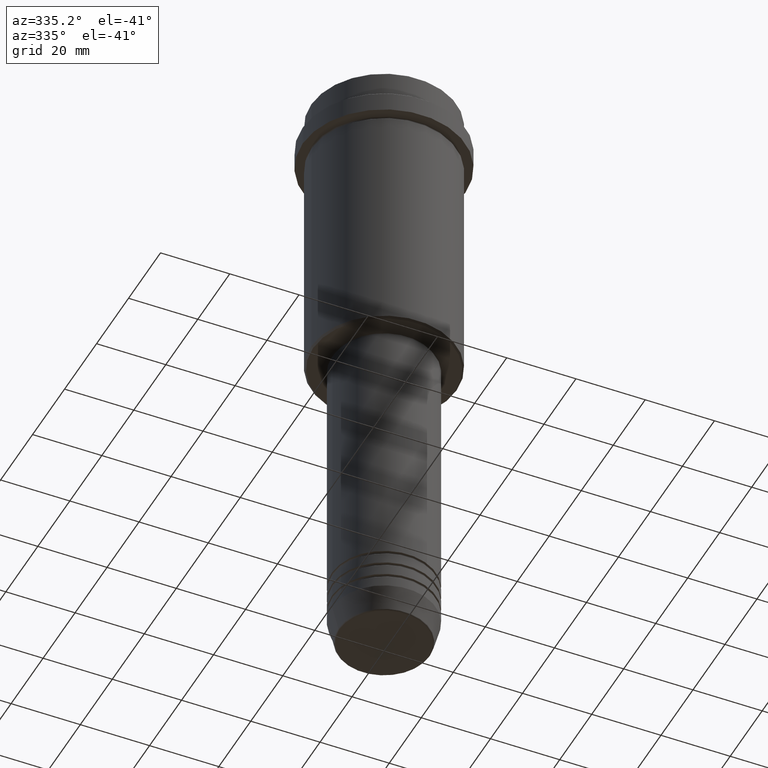
[diagram: clean part render]
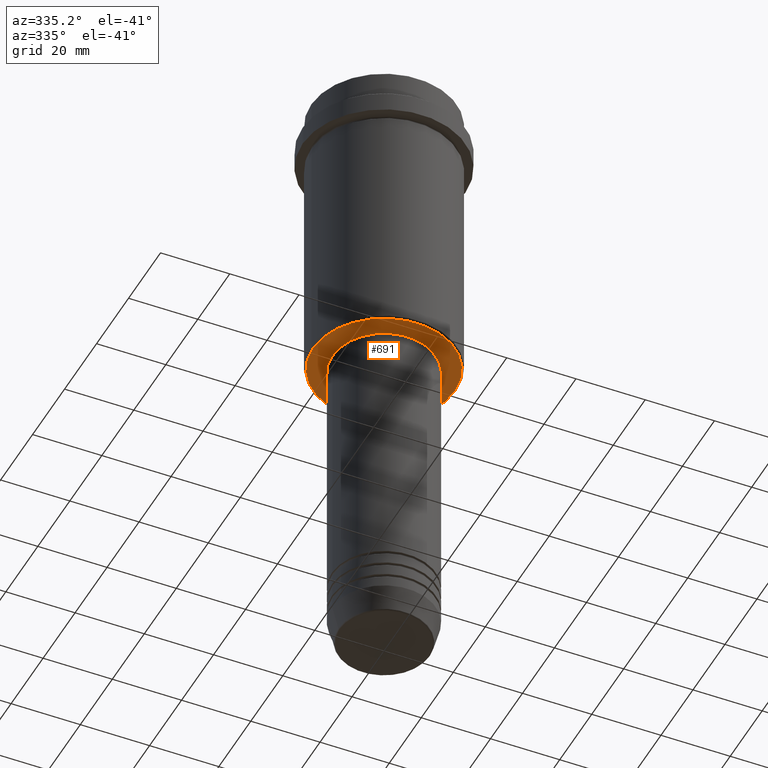
[diagram: same view with one face highlighted and labeled with its STEP entity id]
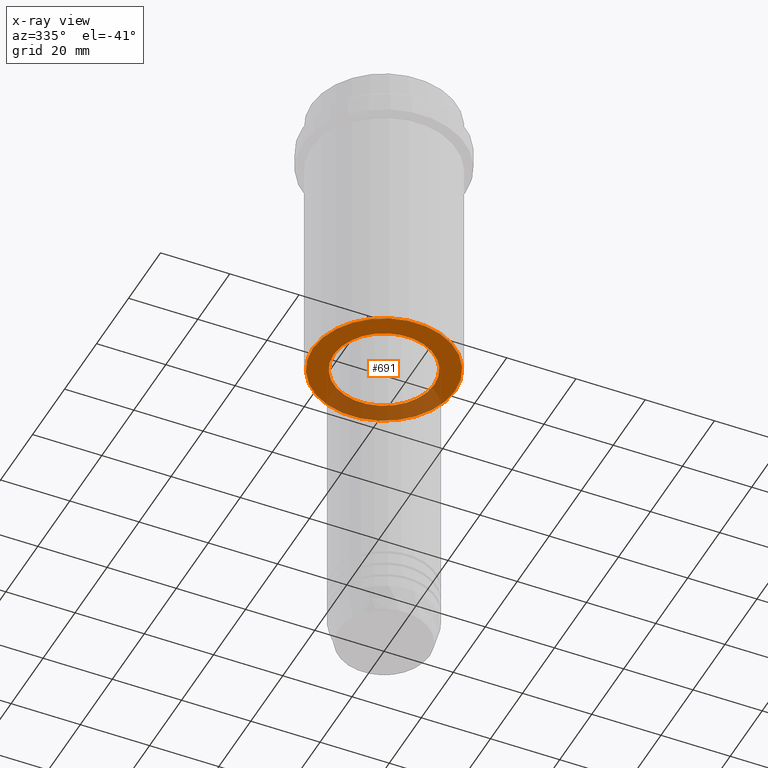
[diagram: x-ray of the same camera — body ghosted, the highlighted face saturated]
A machine part, auxiliary view. The second image highlights one B-rep face of the part: STEP entity #691.
The next image is the same camera in x-ray: the body ghosted, the highlighted face saturated — about 30% of this face is hidden behind the body in this view.
In plain terms, the highlighted planar face has unit normal (0, 0, -1).
Its self-contained STEP definition (entity closure, byte-faithful):
#34 = VERTEX_POINT ( 'NONE', #346 ) ;
#35 = CARTESIAN_POINT ( 'NONE',  ( 0.000000000000000000, 0.000000000000000000, -84.99999999999998579 ) ) ;
#66 = EDGE_CURVE ( 'NONE', #428, #1270, #344, .T. ) ;
#120 = DIRECTION ( 'NONE',  ( -1.000000000000000000, 0.000000000000000000, 0.000000000000000000 ) ) ;
#210 = DIRECTION ( 'NONE',  ( 1.000000000000000000, 0.000000000000000000, 0.000000000000000000 ) ) ;
#218 = CARTESIAN_POINT ( 'NONE',  ( 20.50000000000000355, 0.000000000000000000, -84.99999999999998579 ) ) ;
#230 = CARTESIAN_POINT ( 'NONE',  ( 0.000000000000000000, 21.00000000000000000, -84.99999999999998579 ) ) ;
#344 = CIRCLE ( 'NONE', #438, 20.50000000000000355 ) ;
#346 = CARTESIAN_POINT ( 'NONE',  ( -14.49999999999999467, 1.775737858763661620E-15, -84.99999999999998579 ) ) ;
#401 = CARTESIAN_POINT ( 'NONE',  ( -20.50000000000000355, 2.541142108230758269E-15, -84.99999999999998579 ) ) ;
#428 = VERTEX_POINT ( 'NONE', #218 ) ;
#438 = AXIS2_PLACEMENT_3D ( 'NONE', #600, #922, #1035 ) ;
#482 = VERTEX_POINT ( 'NONE', #1195 ) ;
#518 = CIRCLE ( 'NONE', #939, 14.49999999999999467 ) ;
#600 = CARTESIAN_POINT ( 'NONE',  ( 0.000000000000000000, 0.000000000000000000, -84.99999999999998579 ) ) ;
#603 = EDGE_CURVE ( 'NONE', #1270, #428, #1312, .T. ) ;
#650 = DIRECTION ( 'NONE',  ( -0.000000000000000000, -0.000000000000000000, 1.000000000000000000 ) ) ;
#657 = AXIS2_PLACEMENT_3D ( 'NONE', #1176, #991, #210 ) ;
#667 = EDGE_LOOP ( 'NONE', ( #1092, #1395 ) ) ;
#688 = DIRECTION ( 'NONE',  ( 0.000000000000000000, 0.000000000000000000, -1.000000000000000000 ) ) ;
#691 = ADVANCED_FACE ( 'NONE', ( #1341, #809 ), #1228, .T. ) ;
#729 = EDGE_LOOP ( 'NONE', ( #819, #815 ) ) ;
#809 = FACE_BOUND ( 'NONE', #667, .T. ) ;
#815 = ORIENTED_EDGE ( 'NONE', *, *, #603, .T. ) ;
#817 = AXIS2_PLACEMENT_3D ( 'NONE', #230, #1346, #1009 ) ;
#819 = ORIENTED_EDGE ( 'NONE', *, *, #66, .T. ) ;
#874 = EDGE_CURVE ( 'NONE', #482, #34, #518, .T. ) ;
#922 = DIRECTION ( 'NONE',  ( 0.000000000000000000, 0.000000000000000000, -1.000000000000000000 ) ) ;
#939 = AXIS2_PLACEMENT_3D ( 'NONE', #986, #650, #1089 ) ;
#965 = EDGE_CURVE ( 'NONE', #34, #482, #1106, .T. ) ;
#986 = CARTESIAN_POINT ( 'NONE',  ( 0.000000000000000000, 0.000000000000000000, -84.99999999999998579 ) ) ;
#991 = DIRECTION ( 'NONE',  ( -0.000000000000000000, -0.000000000000000000, 1.000000000000000000 ) ) ;
#1009 = DIRECTION ( 'NONE',  ( -1.000000000000000000, 0.000000000000000000, -0.000000000000000000 ) ) ;
#1035 = DIRECTION ( 'NONE',  ( -1.000000000000000000, 0.000000000000000000, 0.000000000000000000 ) ) ;
#1067 = AXIS2_PLACEMENT_3D ( 'NONE', #35, #688, #120 ) ;
#1089 = DIRECTION ( 'NONE',  ( 1.000000000000000000, 0.000000000000000000, 0.000000000000000000 ) ) ;
#1092 = ORIENTED_EDGE ( 'NONE', *, *, #874, .T. ) ;
#1106 = CIRCLE ( 'NONE', #657, 14.49999999999999467 ) ;
#1176 = CARTESIAN_POINT ( 'NONE',  ( 0.000000000000000000, 0.000000000000000000, -84.99999999999998579 ) ) ;
#1195 = CARTESIAN_POINT ( 'NONE',  ( 14.49999999999999467, 0.000000000000000000, -84.99999999999998579 ) ) ;
#1228 = PLANE ( 'NONE',  #817 ) ;
#1270 = VERTEX_POINT ( 'NONE', #401 ) ;
#1312 = CIRCLE ( 'NONE', #1067, 20.50000000000000355 ) ;
#1341 = FACE_OUTER_BOUND ( 'NONE', #729, .T. ) ;
#1346 = DIRECTION ( 'NONE',  ( 0.000000000000000000, 0.000000000000000000, -1.000000000000000000 ) ) ;
#1395 = ORIENTED_EDGE ( 'NONE', *, *, #965, .T. ) ;